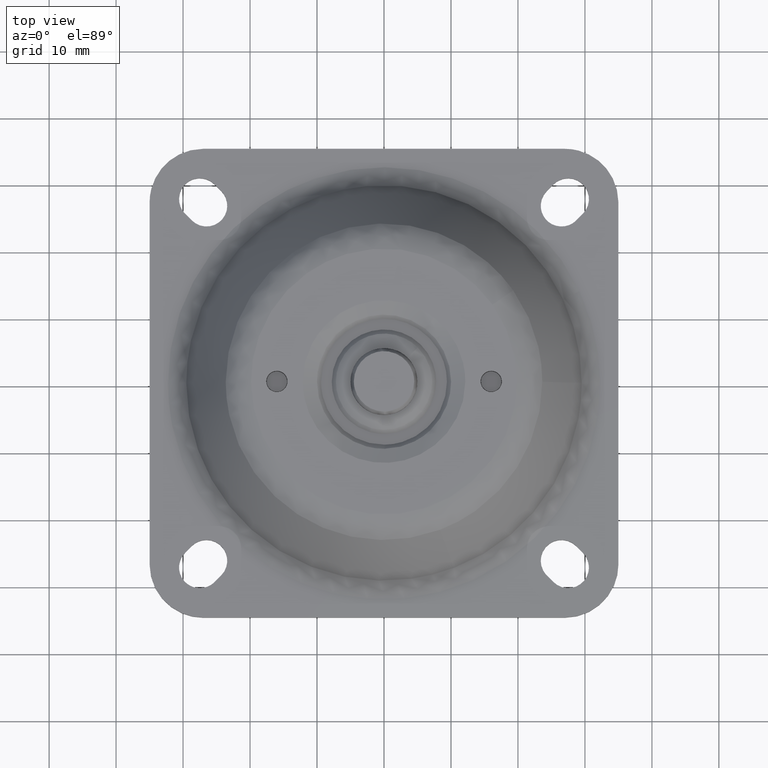
[diagram: clean part render]
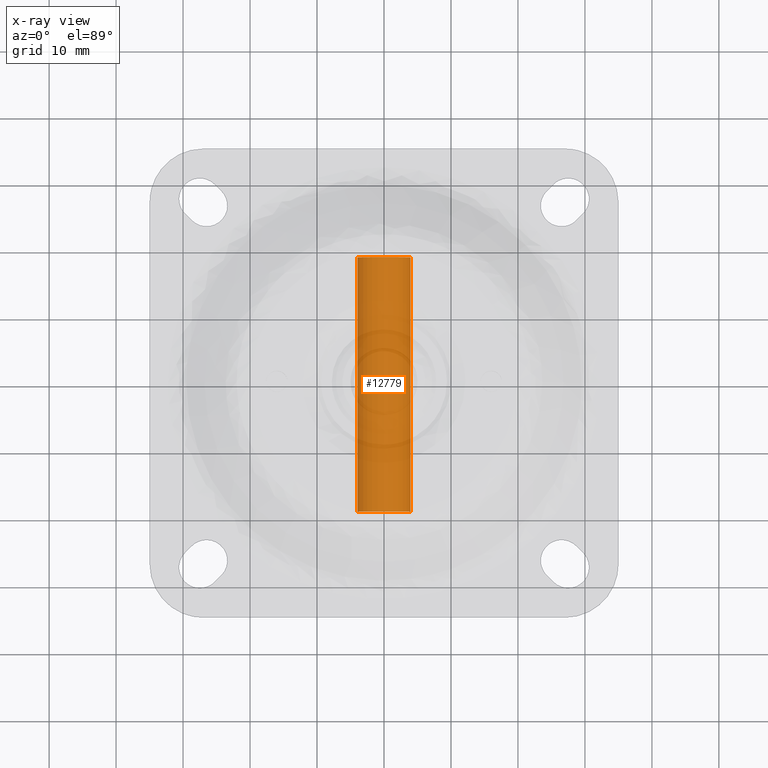
[diagram: x-ray — body ghosted, one internal face saturated and labeled with its STEP entity id]
A machine part, top view, then the same camera in x-ray: the body is ghosted and one INTERNAL B-rep face — a face not visible from any outside direction — is saturated and labeled: STEP entity #12779.
In plain terms, the highlighted face is a freeform B-spline surface patch.
Its self-contained STEP definition (entity closure, byte-faithful):
#12677=CARTESIAN_POINT('',(3.972038105454666,19.949999999999999,-0.472136938627033));
#12678=CARTESIAN_POINT('',(3.985550461794422,19.950000000000006,-0.358458914551909));
#12679=CARTESIAN_POINT('',(3.992539193687467,19.949999999999999,-0.244194158139426));
#12680=CARTESIAN_POINT('',(4.236733351826894,19.950000000000010,3.748345035548040));
#12681=CARTESIAN_POINT('',(0.244194158139428,19.949999999999999,3.992539193687468));
#12682=CARTESIAN_POINT('',(-3.748345035548039,19.950000000000010,4.236733351826898));
#12683=CARTESIAN_POINT('',(-3.992539193687467,19.949999999999999,0.244194158139429));
#12684=CARTESIAN_POINT('',(3.972038105454666,-19.973749999999999,-0.472136938627033));
#12685=CARTESIAN_POINT('',(3.985550461794422,-19.973749999999999,-0.358458914551909));
#12686=CARTESIAN_POINT('',(3.992539193687467,-19.973749999999999,-0.244194158139426));
#12687=CARTESIAN_POINT('',(4.236733351826894,-19.973749999999992,3.748345035548040));
#12688=CARTESIAN_POINT('',(0.244194158139428,-19.973749999999999,3.992539193687468));
#12689=CARTESIAN_POINT('',(-3.748345035548039,-19.973749999999992,4.236733351826898));
#12690=CARTESIAN_POINT('',(-3.992539193687467,-19.973749999999999,0.244194158139429));
#12698=(BOUNDED_SURFACE()B_SPLINE_SURFACE(2,1,((#12677,#12684),(#12678,#12685),(#12679,#12686),(#12680,#12687),(#12681,#12688),(#12682,#12689),(#12683,#12690)),.UNSPECIFIED.,.F.,.F.,.U.)B_SPLINE_SURFACE_WITH_KNOTS((3,2,2,3),(2,2),(0.0,0.265096679918781,6.892513677888300,13.519930675857820),(0.0,39.923750000000013),.UNSPECIFIED.)GEOMETRIC_REPRESENTATION_ITEM()RATIONAL_B_SPLINE_SURFACE(((0.977505800795127,0.977505800795127),(0.988284271247462,0.988284271247462),(1.0,1.0),(0.707106781186548,0.707106781186548),(1.0,1.0),(0.707106781186548,0.707106781186548),(1.0,1.0)))REPRESENTATION_ITEM('')SURFACE());
#12699=CARTESIAN_POINT('',(3.972038105448320,19.0,-0.472136938680417));
#12700=VERTEX_POINT('',#12699);
#12701=CARTESIAN_POINT('',(0.0,19.0,4.000000000000002));
#12702=VERTEX_POINT('',#12701);
#12703=CARTESIAN_POINT('',(3.972038105448320,18.999999999999996,-0.472136938680417));
#12704=CARTESIAN_POINT('',(4.0,19.000000000000004,-0.236896478661587));
#12705=CARTESIAN_POINT('',(4.0,19.0,1.469528E-015));
#12706=CARTESIAN_POINT('',(4.000000000000000,18.999999999999993,4.000000000000003));
#12707=CARTESIAN_POINT('',(0.0,19.0,4.000000000000002));
#12715=(BOUNDED_CURVE()B_SPLINE_CURVE(2,(#12703,#12704,#12705,#12706,#12707),.UNSPECIFIED.,.F.,.U.)B_SPLINE_CURVE_WITH_KNOTS((3,2,3),(0.229562473511101,0.250000000000000,0.500000000000000),.UNSPECIFIED.)CURVE()GEOMETRIC_REPRESENTATION_ITEM()RATIONAL_B_SPLINE_CURVE((0.956026754178982,0.976055948328325,1.0,0.707106781186548,1.0))REPRESENTATION_ITEM(''));
#12716=EDGE_CURVE('',#12700,#12702,#12715,.T.);
#12717=ORIENTED_EDGE('',*,*,#12716,.T.);
#12718=CARTESIAN_POINT('',(-3.992539193680852,19.0,0.244194158247595));
#12719=VERTEX_POINT('',#12718);
#12720=CARTESIAN_POINT('',(0.0,19.0,4.000000000000002));
#12721=CARTESIAN_POINT('',(-3.762824267418514,18.999999999999996,4.000000000000003));
#12722=CARTESIAN_POINT('',(-3.992539193680852,19.000000000000004,0.244194158247595));
#12730=(BOUNDED_CURVE()B_SPLINE_CURVE(2,(#12720,#12721,#12722),.UNSPECIFIED.,.F.,.U.)B_SPLINE_CURVE_WITH_KNOTS((3,3),(0.500000000000000,0.739332962232619),.UNSPECIFIED.)CURVE()GEOMETRIC_REPRESENTATION_ITEM()RATIONAL_B_SPLINE_CURVE((1.0,0.719603993294119,0.976072041653165))REPRESENTATION_ITEM(''));
#12731=EDGE_CURVE('',#12702,#12719,#12730,.T.);
#12732=ORIENTED_EDGE('',*,*,#12731,.T.);
#12733=CARTESIAN_POINT('',(-3.992539193680852,-19.0,0.244194158247595));
#12734=VERTEX_POINT('',#12733);
#12735=CARTESIAN_POINT('',(-3.992539193680852,19.0,0.244194158247595));
#12736=CARTESIAN_POINT('',(-3.992539193680852,-19.0,0.244194158247595));
#12737=QUASI_UNIFORM_CURVE('',1,(#12735,#12736),.UNSPECIFIED.,.F.,.U.);
#12738=EDGE_CURVE('',#12719,#12734,#12737,.T.);
#12739=ORIENTED_EDGE('',*,*,#12738,.T.);
#12740=CARTESIAN_POINT('',(0.0,-19.0,4.000000000000002));
#12741=VERTEX_POINT('',#12740);
#12742=CARTESIAN_POINT('',(0.0,-19.0,4.000000000000002));
#12743=CARTESIAN_POINT('',(-3.762824267418514,-18.999999999999996,4.000000000000003));
#12744=CARTESIAN_POINT('',(-3.992539193680852,-19.000000000000004,0.244194158247595));
#12752=(BOUNDED_CURVE()B_SPLINE_CURVE(2,(#12742,#12743,#12744),.UNSPECIFIED.,.F.,.U.)B_SPLINE_CURVE_WITH_KNOTS((3,3),(0.500000000000000,0.739332962232619),.UNSPECIFIED.)CURVE()GEOMETRIC_REPRESENTATION_ITEM()RATIONAL_B_SPLINE_CURVE((1.0,0.719603993294119,0.976072041653165))REPRESENTATION_ITEM(''));
#12753=EDGE_CURVE('',#12741,#12734,#12752,.T.);
#12754=ORIENTED_EDGE('',*,*,#12753,.F.);
#12755=CARTESIAN_POINT('',(3.972038105448320,-19.0,-0.472136938680416));
#12756=VERTEX_POINT('',#12755);
#12757=CARTESIAN_POINT('',(3.972038105448320,-18.999999999999996,-0.472136938680416));
#12758=CARTESIAN_POINT('',(4.0,-19.000000000000004,-0.236896478661587));
#12759=CARTESIAN_POINT('',(4.0,-19.0,1.469528E-015));
#12760=CARTESIAN_POINT('',(4.000000000000000,-18.999999999999993,4.000000000000003));
#12761=CARTESIAN_POINT('',(0.0,-19.0,4.000000000000002));
#12769=(BOUNDED_CURVE()B_SPLINE_CURVE(2,(#12757,#12758,#12759,#12760,#12761),.UNSPECIFIED.,.F.,.U.)B_SPLINE_CURVE_WITH_KNOTS((3,2,3),(0.229562473511102,0.250000000000000,0.500000000000000),.UNSPECIFIED.)CURVE()GEOMETRIC_REPRESENTATION_ITEM()RATIONAL_B_SPLINE_CURVE((0.956026754178982,0.976055948328325,1.0,0.707106781186548,1.0))REPRESENTATION_ITEM(''));
#12770=EDGE_CURVE('',#12756,#12741,#12769,.T.);
#12771=ORIENTED_EDGE('',*,*,#12770,.F.);
#12772=CARTESIAN_POINT('',(3.972038105448320,19.0,-0.472136938680417));
#12773=CARTESIAN_POINT('',(3.972038105448320,-19.0,-0.472136938680416));
#12774=QUASI_UNIFORM_CURVE('',1,(#12772,#12773),.UNSPECIFIED.,.F.,.U.);
#12775=EDGE_CURVE('',#12700,#12756,#12774,.T.);
#12776=ORIENTED_EDGE('',*,*,#12775,.F.);
#12777=EDGE_LOOP('',(#12717,#12732,#12739,#12754,#12771,#12776));
#12778=FACE_OUTER_BOUND('',#12777,.T.);
#12779=ADVANCED_FACE('',(#12778),#12698,.T.);